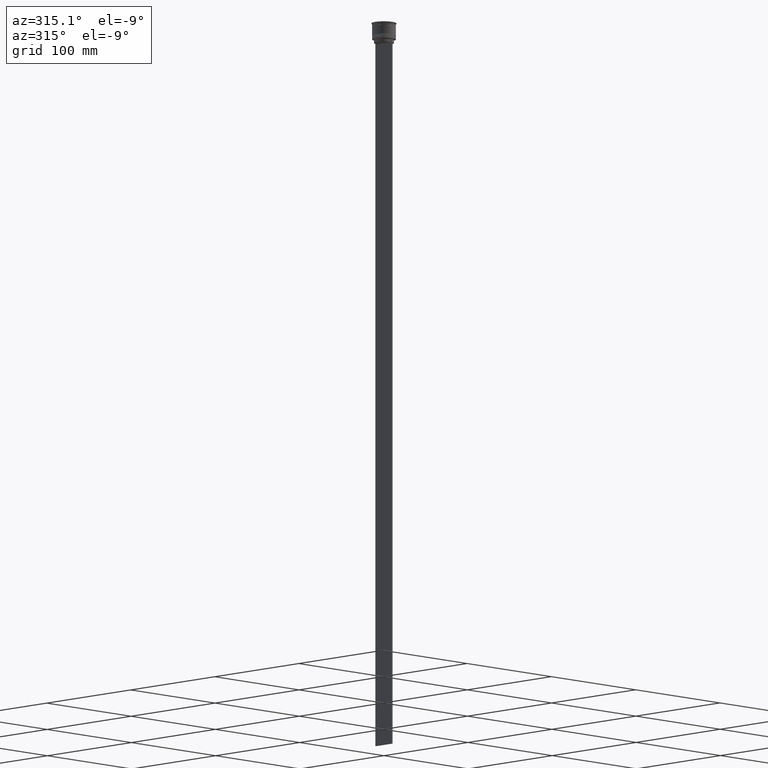
[diagram: clean part render]
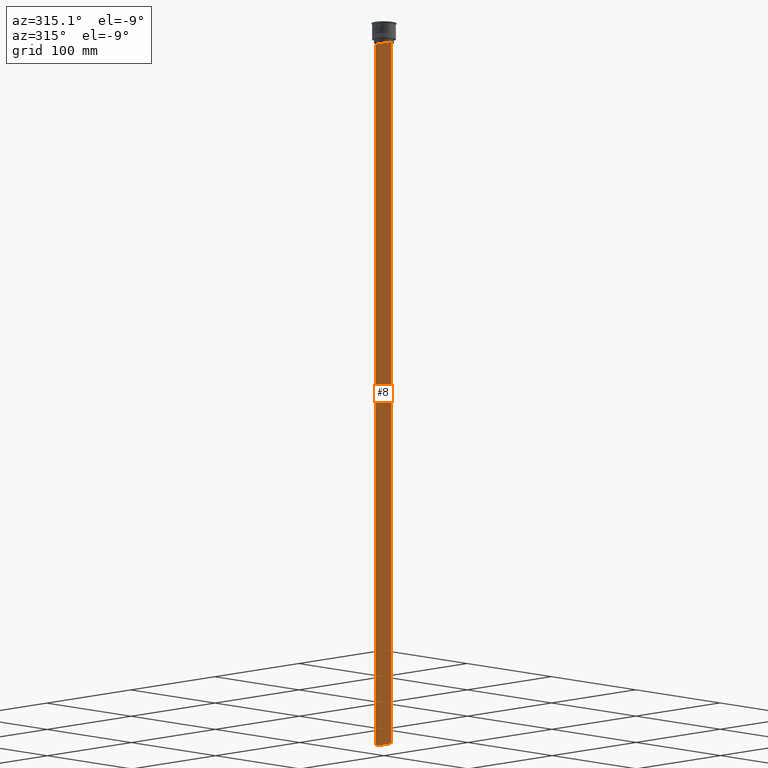
[diagram: same view with one face highlighted and labeled with its STEP entity id]
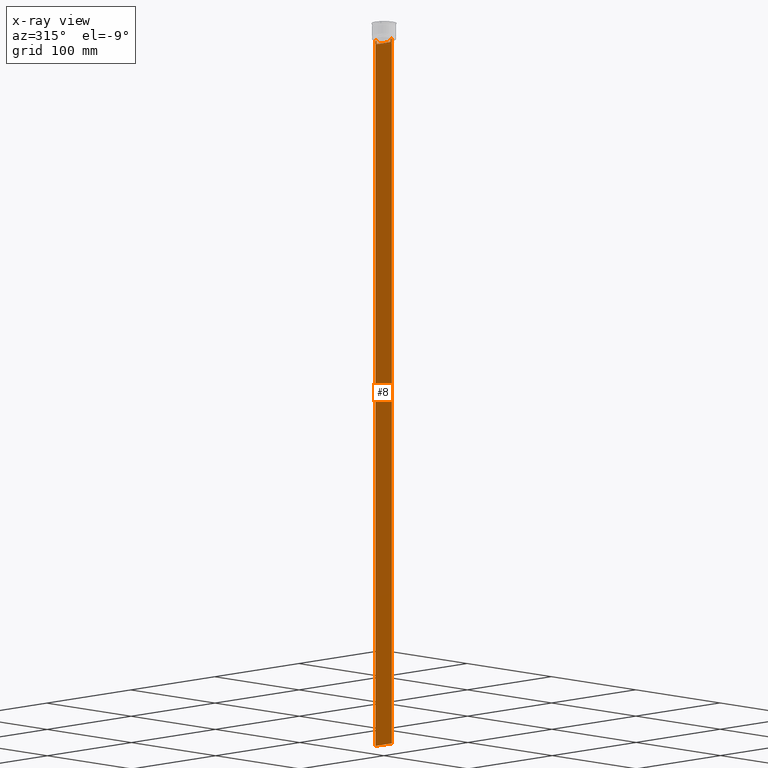
[diagram: x-ray of the same camera — body ghosted, the highlighted face saturated]
A machine part, auxiliary view. The second image highlights one B-rep face of the part: STEP entity #8.
The next image is the same camera in x-ray: the body ghosted, the highlighted face saturated — about 0% of this face is hidden behind the body in this view.
In plain terms, the highlighted planar face has unit normal (-1, 0, 0).
Its self-contained STEP definition (entity closure, byte-faithful):
#8 = ADVANCED_FACE ( 'NONE', ( #875 ), #1272, .T. ) ;
#21 = DIRECTION ( 'NONE',  ( 0.000000000000000000, 0.000000000000000000, -1.000000000000000000 ) ) ;
#95 = CARTESIAN_POINT ( 'NONE',  ( -0.5000000000000001110, 8.385105843100616241, -14.50000000000000000 ) ) ;
#121 = EDGE_CURVE ( 'NONE', #1907, #1970, #2454, .T. ) ;
#126 = LINE ( 'NONE', #2115, #302 ) ;
#186 = VERTEX_POINT ( 'NONE', #799 ) ;
#190 = LINE ( 'NONE', #1728, #2270 ) ;
#222 = CARTESIAN_POINT ( 'NONE',  ( -0.5000000000000001110, 8.400000000000003908, -17.00000000000000000 ) ) ;
#281 = CARTESIAN_POINT ( 'NONE',  ( -0.5000000000000001110, -9.749999999999998224, -14.00000000000000178 ) ) ;
#302 = VECTOR ( 'NONE', #2145, 1000.000000000000000 ) ;
#304 = ORIENTED_EDGE ( 'NONE', *, *, #740, .T. ) ;
#352 = VECTOR ( 'NONE', #974, 1000.000000000000000 ) ;
#357 = CARTESIAN_POINT ( 'NONE',  ( -0.5000000000000001110, -9.749999999999998224, 5.525624189766635830 ) ) ;
#367 = CARTESIAN_POINT ( 'NONE',  ( -0.5000000000000001110, -8.385105843100616241, -14.50000000000000000 ) ) ;
#424 = LINE ( 'NONE', #222, #352 ) ;
#426 = CARTESIAN_POINT ( 'NONE',  ( -0.5000000000000001110, 8.385105843100616241, 0.000000000000000000 ) ) ;
#490 = CARTESIAN_POINT ( 'NONE',  ( -0.5000000000000001110, 9.750000000000001776, -614.0000000000000000 ) ) ;
#532 = VECTOR ( 'NONE', #2167, 1000.000000000000000 ) ;
#665 = ORIENTED_EDGE ( 'NONE', *, *, #2321, .F. ) ;
#677 = VERTEX_POINT ( 'NONE', #1230 ) ;
#694 = CARTESIAN_POINT ( 'NONE',  ( -0.5000000000000001110, 8.552060201981381837, -14.33334167021640226 ) ) ;
#740 = EDGE_CURVE ( 'NONE', #2491, #2304, #1705, .T. ) ;
#766 = EDGE_CURVE ( 'NONE', #1176, #1907, #126, .T. ) ;
#799 = CARTESIAN_POINT ( 'NONE',  ( -0.5000000000000001110, 8.385105843100616241, -17.00000000000000000 ) ) ;
#862 = VERTEX_POINT ( 'NONE', #1394 ) ;
#875 = FACE_OUTER_BOUND ( 'NONE', #1274, .T. ) ;
#968 = ORIENTED_EDGE ( 'NONE', *, *, #2515, .F. ) ;
#973 = VERTEX_POINT ( 'NONE', #1871 ) ;
#974 = DIRECTION ( 'NONE',  ( 0.000000000000000000, -1.000000000000000000, 0.000000000000000000 ) ) ;
#977 = DIRECTION ( 'NONE',  ( 0.000000000000000000, 1.000000000000000000, 0.000000000000000000 ) ) ;
#981 = VECTOR ( 'NONE', #1490, 1000.000000000000000 ) ;
#1033 = ORIENTED_EDGE ( 'NONE', *, *, #1899, .F. ) ;
#1049 = DIRECTION ( 'NONE',  ( 0.000000000000000000, 0.000000000000000000, 1.000000000000000000 ) ) ;
#1065 = ORIENTED_EDGE ( 'NONE', *, *, #121, .F. ) ;
#1092 = DIRECTION ( 'NONE',  ( -1.000000000000000000, 0.000000000000000000, 0.000000000000000000 ) ) ;
#1112 = CARTESIAN_POINT ( 'NONE',  ( -0.5000000000000001110, -9.749999999999998224, -14.00000000000000178 ) ) ;
#1114 = ORIENTED_EDGE ( 'NONE', *, *, #766, .F. ) ;
#1176 = VERTEX_POINT ( 'NONE', #1678 ) ;
#1230 = CARTESIAN_POINT ( 'NONE',  ( -0.5000000000000001110, -9.749999999999998224, -14.00000000000000178 ) ) ;
#1232 = CARTESIAN_POINT ( 'NONE',  ( -0.5000000000000001110, -9.749999999999998224, 5.525624189766635830 ) ) ;
#1253 = ORIENTED_EDGE ( 'NONE', *, *, #2219, .F. ) ;
#1268 = CARTESIAN_POINT ( 'NONE',  ( -0.5000000000000001110, 8.719005771582351016, -14.16667453442324742 ) ) ;
#1272 = PLANE ( 'NONE',  #2527 ) ;
#1274 = EDGE_LOOP ( 'NONE', ( #1033, #665, #304, #1291, #968, #2388, #1065, #1114, #1414, #1253 ) ) ;
#1291 = ORIENTED_EDGE ( 'NONE', *, *, #2065, .F. ) ;
#1317 = CARTESIAN_POINT ( 'NONE',  ( -0.5000000000000001110, -8.385105843100616241, -14.50000000000000000 ) ) ;
#1322 = CARTESIAN_POINT ( 'NONE',  ( -0.5000000000000001110, -8.885943956609230199, -14.00000000000000178 ) ) ;
#1375 = VECTOR ( 'NONE', #2316, 1000.000000000000000 ) ;
#1394 = CARTESIAN_POINT ( 'NONE',  ( -0.5000000000000001110, 8.385105843100616241, -14.50000000000000000 ) ) ;
#1414 = ORIENTED_EDGE ( 'NONE', *, *, #1622, .F. ) ;
#1478 = VECTOR ( 'NONE', #1662, 1000.000000000000000 ) ;
#1490 = DIRECTION ( 'NONE',  ( 0.000000000000000000, -1.000000000000000000, 0.000000000000000000 ) ) ;
#1517 = CARTESIAN_POINT ( 'NONE',  ( -0.5000000000000001110, 9.749999999999998224, -14.00000000000000178 ) ) ;
#1528 = LINE ( 'NONE', #357, #532 ) ;
#1605 = VECTOR ( 'NONE', #21, 1000.000000000000000 ) ;
#1622 = EDGE_CURVE ( 'NONE', #186, #1176, #424, .T. ) ;
#1662 = DIRECTION ( 'NONE',  ( 0.000000000000000000, -1.000000000000000000, 0.000000000000000000 ) ) ;
#1676 = CARTESIAN_POINT ( 'NONE',  ( -0.5000000000000001110, 8.885943956609230199, -14.00000000000000178 ) ) ;
#1678 = CARTESIAN_POINT ( 'NONE',  ( -0.5000000000000001110, -8.385105843100616241, -17.00000000000000000 ) ) ;
#1705 = LINE ( 'NONE', #1938, #1375 ) ;
#1728 = CARTESIAN_POINT ( 'NONE',  ( -0.5000000000000001110, -9.749999999999998224, -614.0000000000000000 ) ) ;
#1766 = CARTESIAN_POINT ( 'NONE',  ( -0.5000000000000001110, -8.552060194457773434, -14.33334167772667023 ) ) ;
#1871 = CARTESIAN_POINT ( 'NONE',  ( -0.5000000000000001110, -9.749999999999998224, -614.0000000000000000 ) ) ;
#1899 = EDGE_CURVE ( 'NONE', #1923, #862, #2217, .T. ) ;
#1904 = LINE ( 'NONE', #281, #981 ) ;
#1907 = VERTEX_POINT ( 'NONE', #1317 ) ;
#1914 = LINE ( 'NONE', #1112, #1478 ) ;
#1921 = CARTESIAN_POINT ( 'NONE',  ( -0.5000000000000001110, -8.719005764482790966, -14.16667454151159689 ) ) ;
#1923 = VERTEX_POINT ( 'NONE', #2289 ) ;
#1938 = CARTESIAN_POINT ( 'NONE',  ( -0.5000000000000001110, 9.750000000000001776, 5.525624189766635830 ) ) ;
#1970 = VERTEX_POINT ( 'NONE', #2313 ) ;
#2065 = EDGE_CURVE ( 'NONE', #973, #2304, #190, .T. ) ;
#2115 = CARTESIAN_POINT ( 'NONE',  ( -0.5000000000000001110, -8.385105843100616241, 0.000000000000000000 ) ) ;
#2145 = DIRECTION ( 'NONE',  ( -0.000000000000000000, -0.000000000000000000, 1.000000000000000000 ) ) ;
#2167 = DIRECTION ( 'NONE',  ( 0.000000000000000000, 0.000000000000000000, -1.000000000000000000 ) ) ;
#2217 = B_SPLINE_CURVE_WITH_KNOTS ( 'NONE', 3,
 ( #1676, #1268, #694, #95 ),
 .UNSPECIFIED., .F., .F.,
 ( 4, 4 ),
 ( 0.01511546479386908018, 0.01582316445439079997 ),
 .UNSPECIFIED. ) ;
#2219 = EDGE_CURVE ( 'NONE', #862, #186, #2429, .T. ) ;
#2270 = VECTOR ( 'NONE', #977, 1000.000000000000000 ) ;
#2289 = CARTESIAN_POINT ( 'NONE',  ( -0.5000000000000001110, 8.885943956609230199, -14.00000000000000178 ) ) ;
#2304 = VERTEX_POINT ( 'NONE', #490 ) ;
#2313 = CARTESIAN_POINT ( 'NONE',  ( -0.5000000000000001110, -8.885943956609230199, -14.00000000000000178 ) ) ;
#2316 = DIRECTION ( 'NONE',  ( 0.000000000000000000, 0.000000000000000000, -1.000000000000000000 ) ) ;
#2321 = EDGE_CURVE ( 'NONE', #2491, #1923, #1914, .T. ) ;
#2353 = EDGE_CURVE ( 'NONE', #1970, #677, #1904, .T. ) ;
#2388 = ORIENTED_EDGE ( 'NONE', *, *, #2353, .F. ) ;
#2429 = LINE ( 'NONE', #426, #1605 ) ;
#2454 = B_SPLINE_CURVE_WITH_KNOTS ( 'NONE', 3,
 ( #367, #1766, #1921, #1322 ),
 .UNSPECIFIED., .F., .F.,
 ( 4, 4 ),
 ( 0.03898465126933130243, 0.03969388910599658260 ),
 .UNSPECIFIED. ) ;
#2491 = VERTEX_POINT ( 'NONE', #1517 ) ;
#2515 = EDGE_CURVE ( 'NONE', #677, #973, #1528, .T. ) ;
#2527 = AXIS2_PLACEMENT_3D ( 'NONE', #1232, #1092, #1049 ) ;